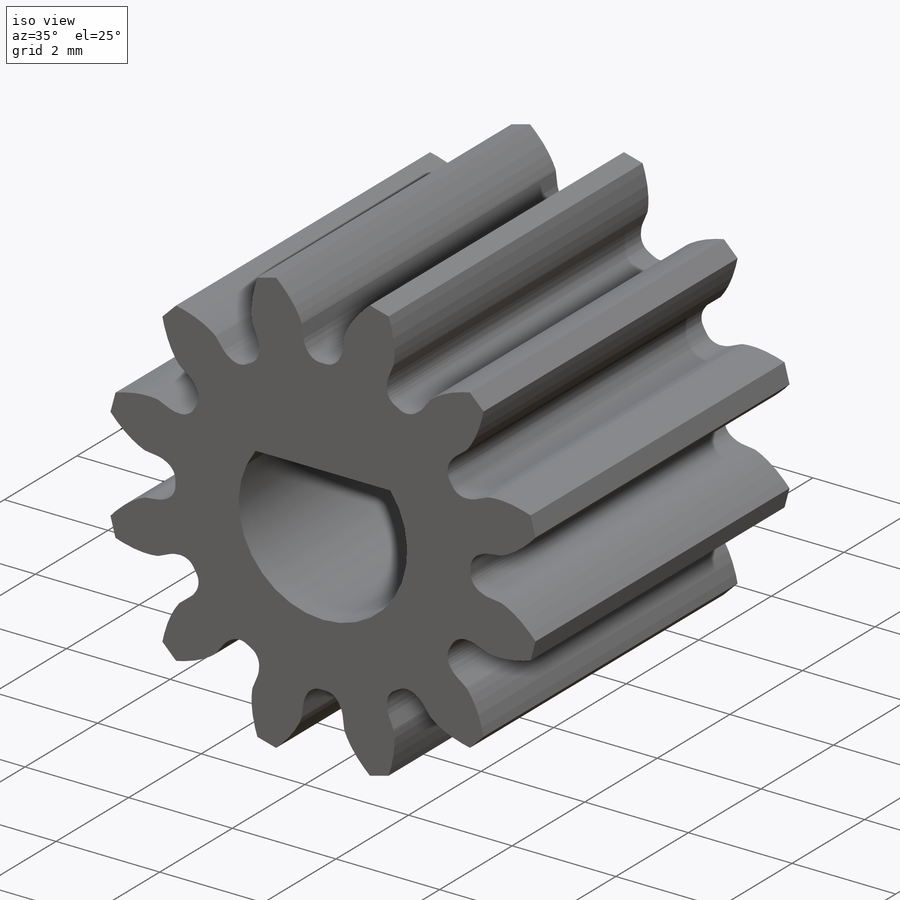
[diagram: iso view]
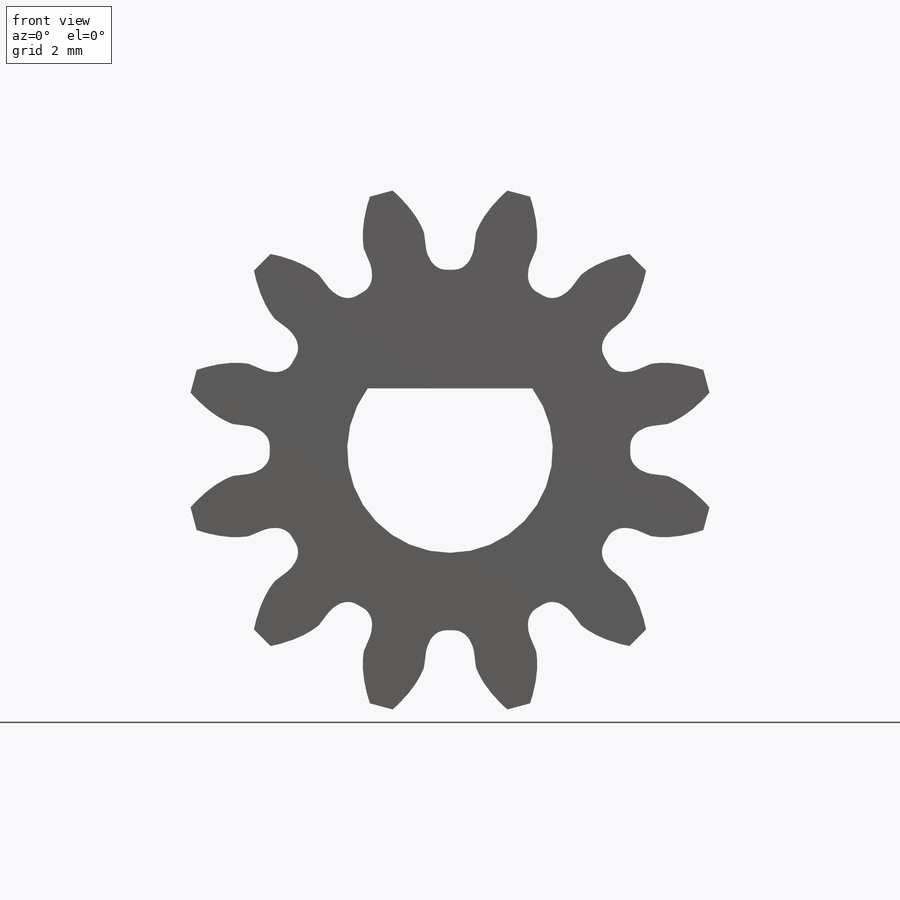
[diagram: front view]
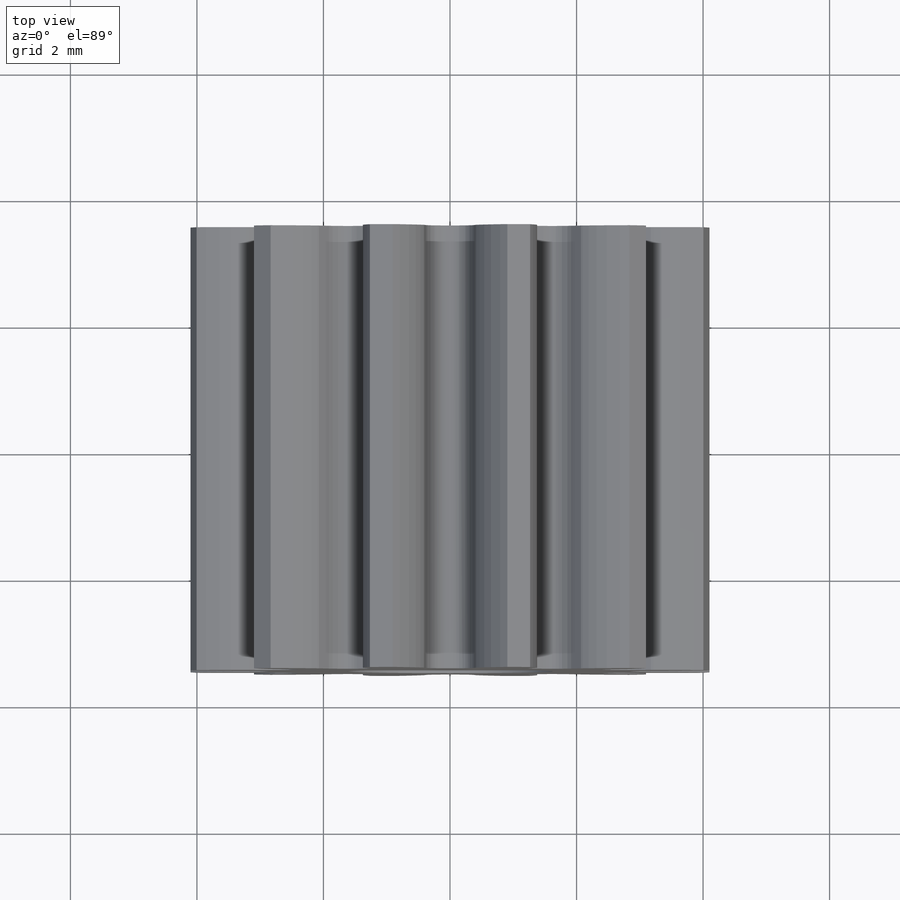
[diagram: top view]
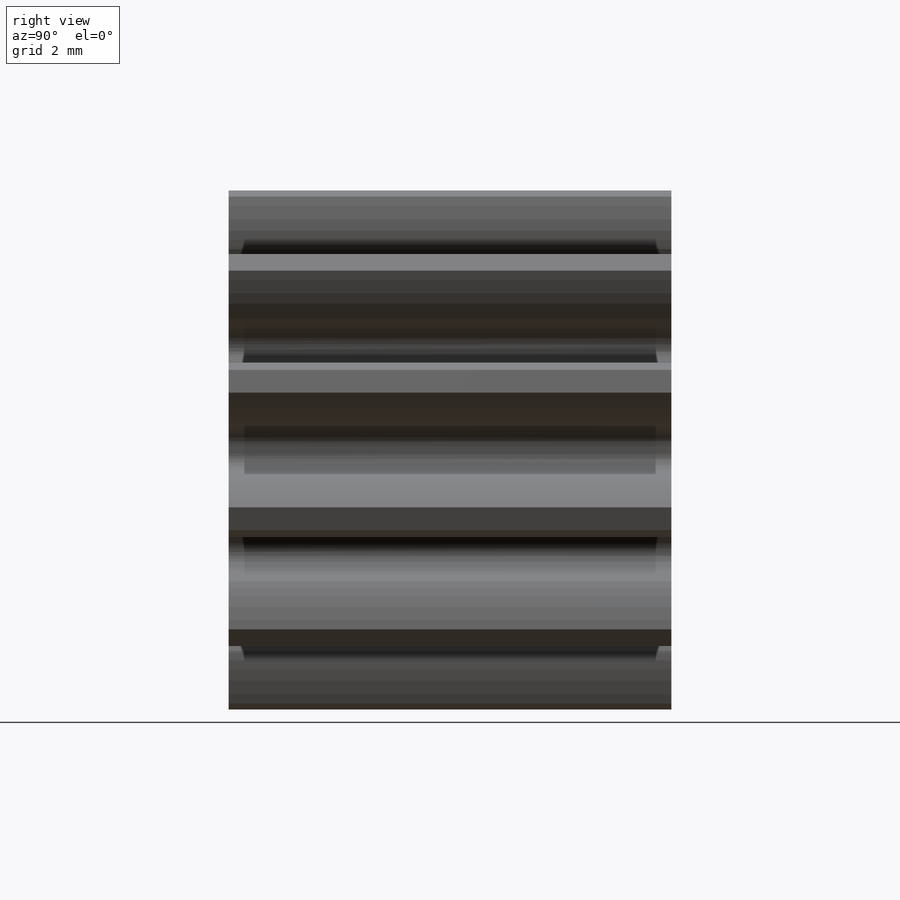
[diagram: right view]
SOLIDWORKS PART (.sldprt)
format: sldprt  version: not decoded by parser v0  size: 524,800 bytes
history: native  units: mm
features: plane x3, sketch x3, cut_extrude x2, material x1, extrude x1, pattern_circular x1 (+10 scaffold rows collapsed)
feature tree (21):
  scaffold x10  (default folders/planes/origin — collapsed)
  material  "材质 <未指定>"
  plane  "前视基准面"
  plane  "上视基准面"
  plane  "右视基准面"
  sketch  "大齿-基础草图        "  dims[D1=~8.400007mm]
  extrude  "0.6 模数    , 7.2000mm P.D."  Depth=7mm
  sketch  "齿形草图;   侧隙:             0.0000mm"
  cut_extrude  "齿形除料     , 大节距 渐开线 20 度                "  Depth=10mm
  pattern_circular  "齿形图样,          12 / 12"  Count=12 Angle=30deg
  sketch  "Sketch3"  dims[D1=3.25mm D2=2.6mm]
  cut_extrude  "Extrude3"  Depth=10mm
decode coverage: 6 of 7 modeling features carry decoded parameters
note: ~ marks probable driven/reference dimensions
note: suppression state not decoded; provenance and decode notes live in map.json
